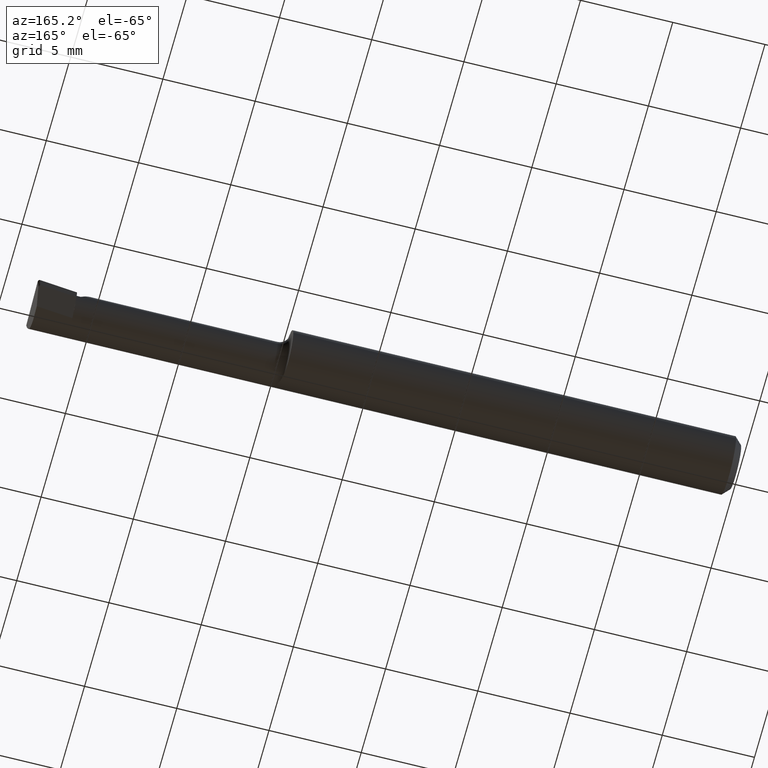
[diagram: clean part render]
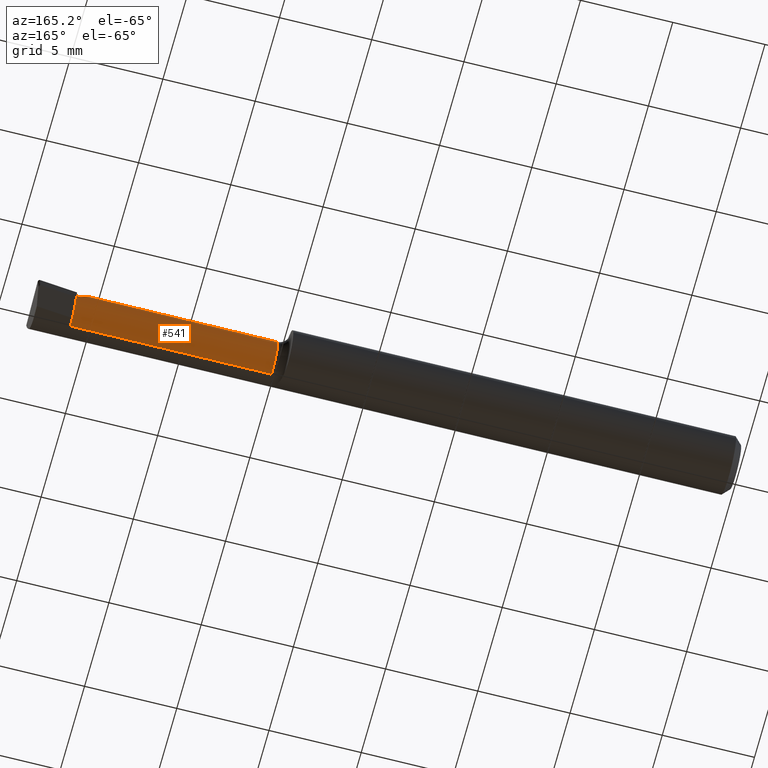
[diagram: same view with one face highlighted and labeled with its STEP entity id]
A machine part, auxiliary view. The second image highlights one B-rep face of the part: STEP entity #541.
In plain terms, the highlighted cylindrical surface (edge-blend (fillet) strip) has radius 1.2205 mm, axis along (-1, -0, -0).
Its self-contained STEP definition (entity closure, byte-faithful):
#14 = CARTESIAN_POINT ( 'NONE',  ( 1.415000000000000036, -0.01839999999999999969, 0.0000000000000000000 ) ) ;
#16 = CARTESIAN_POINT ( 'NONE',  ( 1.415000000000000036, 0.007456147106387241673, -0.04050015008383130860 ) ) ;
#19 = CARTESIAN_POINT ( 'NONE',  ( 1.415000000000000036, -0.01839999999999999969, 0.0000000000000000000 ) ) ;
#25 = CARTESIAN_POINT ( 'NONE',  ( 2.249639673992775738E-32, 0.02964999999999996458, 1.836970198721025250E-16 ) ) ;
#26 = DIRECTION ( 'NONE',  ( 0.0000000000000000000, 0.0000000000000000000, 1.000000000000000000 ) ) ;
#31 = CARTESIAN_POINT ( 'NONE',  ( 1.415000000000000036, -0.01839999999999999969, -0.04804999999999998855 ) ) ;
#36 = CIRCLE ( 'NONE', #620, 0.04805000000000000243 ) ;
#47 = ORIENTED_EDGE ( 'NONE', *, *, #307, .F. ) ;
#54 = CIRCLE ( 'NONE', #584, 0.04805000000000000243 ) ;
#63 = DIRECTION ( 'NONE',  ( 1.000000000000000000, 0.0000000000000000000, 0.0000000000000000000 ) ) ;
#77 = DIRECTION ( 'NONE',  ( -1.000000000000000000, -0.0000000000000000000, -0.0000000000000000000 ) ) ;
#79 = DIRECTION ( 'NONE',  ( 0.0000000000000000000, 0.0000000000000000000, 1.000000000000000000 ) ) ;
#81 = CARTESIAN_POINT ( 'NONE',  ( 1.405000000000000249, 0.02964999999999991601, 1.163414459189982046E-17 ) ) ;
#105 = VECTOR ( 'NONE', #537, 39.37007874015748143 ) ;
#109 = EDGE_CURVE ( 'NONE', #404, #261, #54, .T. ) ;
#111 = ORIENTED_EDGE ( 'NONE', *, *, #641, .T. ) ;
#114 =( BOUNDED_CURVE ( )  B_SPLINE_CURVE ( 3, ( #247, #674, #547, #120 ),
 .UNSPECIFIED., .F., .T. ) 
 B_SPLINE_CURVE_WITH_KNOTS ( ( 4, 4 ),
 ( 0.0000000000000000000, 1.570796326794896558 ),
 .UNSPECIFIED. ) 
 CURVE ( )  GEOMETRIC_REPRESENTATION_ITEM ( )  RATIONAL_B_SPLINE_CURVE ( ( 1.000000000000000000, 0.8047378541243649375, 0.8047378541243649375, 1.000000000000000000 ) ) 
 REPRESENTATION_ITEM ( '' )  );
#120 = CARTESIAN_POINT ( 'NONE',  ( 1.405000000000000249, 0.02964999999999991601, 1.163414459189982046E-17 ) ) ;
#126 = AXIS2_PLACEMENT_3D ( 'NONE', #297, #668, #236 ) ;
#129 = DIRECTION ( 'NONE',  ( -1.000000000000000000, -0.0000000000000000000, -0.0000000000000000000 ) ) ;
#138 = CYLINDRICAL_SURFACE ( 'NONE', #126, 0.04804999999999997468 ) ;
#145 = VERTEX_POINT ( 'NONE', #694 ) ;
#165 = ORIENTED_EDGE ( 'NONE', *, *, #421, .T. ) ;
#174 = EDGE_CURVE ( 'NONE', #468, #472, #213, .T. ) ;
#191 = CIRCLE ( 'NONE', #377, 0.04804999999999997468 ) ;
#213 = LINE ( 'NONE', #531, #105 ) ;
#236 = DIRECTION ( 'NONE',  ( 0.0000000000000000000, 0.0000000000000000000, 1.000000000000000000 ) ) ;
#240 = VERTEX_POINT ( 'NONE', #528 ) ;
#247 = CARTESIAN_POINT ( 'NONE',  ( 1.356949999999999878, -0.01839999999999999969, 0.04804999999999997468 ) ) ;
#261 = VERTEX_POINT ( 'NONE', #31 ) ;
#297 = CARTESIAN_POINT ( 'NONE',  ( 0.0000000000000000000, -0.01839999999999999969, 0.0000000000000000000 ) ) ;
#307 = EDGE_CURVE ( 'NONE', #472, #397, #316, .T. ) ;
#316 = CIRCLE ( 'NONE', #567, 0.04804999999999994692 ) ;
#318 = CARTESIAN_POINT ( 'NONE',  ( 0.0000000000000000000, -0.01839999999999999275, -0.04804999999999997468 ) ) ;
#330 = DIRECTION ( 'NONE',  ( 0.0000000000000000000, 0.0000000000000000000, 1.000000000000000000 ) ) ;
#352 = DIRECTION ( 'NONE',  ( -1.000000000000000000, -0.0000000000000000000, -0.0000000000000000000 ) ) ;
#366 = ORIENTED_EDGE ( 'NONE', *, *, #109, .T. ) ;
#372 = CARTESIAN_POINT ( 'NONE',  ( 1.356949999999999878, -0.01839999999999999969, 0.04804999999999997468 ) ) ;
#375 = LINE ( 'NONE', #318, #569 ) ;
#377 = AXIS2_PLACEMENT_3D ( 'NONE', #14, #63, #330 ) ;
#397 = VERTEX_POINT ( 'NONE', #529 ) ;
#404 = VERTEX_POINT ( 'NONE', #16 ) ;
#409 = ORIENTED_EDGE ( 'NONE', *, *, #622, .F. ) ;
#418 = VECTOR ( 'NONE', #460, 39.37007874015748143 ) ;
#421 = EDGE_CURVE ( 'NONE', #261, #397, #375, .T. ) ;
#460 = DIRECTION ( 'NONE',  ( 1.000000000000000000, 0.0000000000000000000, 0.0000000000000000000 ) ) ;
#464 = CARTESIAN_POINT ( 'NONE',  ( 1.415000000000000036, -0.01839999999999999969, 0.0000000000000000000 ) ) ;
#465 = DIRECTION ( 'NONE',  ( 0.0000000000000000000, 0.0000000000000000000, 1.000000000000000000 ) ) ;
#468 = VERTEX_POINT ( 'NONE', #372 ) ;
#469 = CARTESIAN_POINT ( 'NONE',  ( 0.9850000000000000977, -0.01839999999999999969, 0.0000000000000000000 ) ) ;
#470 = EDGE_CURVE ( 'NONE', #468, #751, #114, .T. ) ;
#472 = VERTEX_POINT ( 'NONE', #779 ) ;
#528 = CARTESIAN_POINT ( 'NONE',  ( 1.415000000000000036, 0.02964999999999999927, 1.836970198721026483E-16 ) ) ;
#529 = CARTESIAN_POINT ( 'NONE',  ( 0.9850000000000000977, -0.01839999999999999275, -0.04804999999999994692 ) ) ;
#531 = CARTESIAN_POINT ( 'NONE',  ( 0.0000000000000000000, -0.01839999999999999969, 0.04804999999999997468 ) ) ;
#537 = DIRECTION ( 'NONE',  ( -1.000000000000000000, -0.0000000000000000000, -0.0000000000000000000 ) ) ;
#541 = ADVANCED_FACE ( 'NONE', ( #743 ), #138, .T. ) ;
#547 = CARTESIAN_POINT ( 'NONE',  ( 1.376852961672026865, 0.02964999999999997499, 0.02814703832797277316 ) ) ;
#567 = AXIS2_PLACEMENT_3D ( 'NONE', #469, #605, #465 ) ;
#569 = VECTOR ( 'NONE', #129, 39.37007874015748143 ) ;
#576 = LINE ( 'NONE', #25, #418 ) ;
#584 = AXIS2_PLACEMENT_3D ( 'NONE', #19, #352, #26 ) ;
#586 = ORIENTED_EDGE ( 'NONE', *, *, #470, .T. ) ;
#605 = DIRECTION ( 'NONE',  ( -1.000000000000000000, -0.0000000000000000000, -0.0000000000000000000 ) ) ;
#620 = AXIS2_PLACEMENT_3D ( 'NONE', #464, #77, #79 ) ;
#622 = EDGE_CURVE ( 'NONE', #404, #145, #191, .T. ) ;
#641 = EDGE_CURVE ( 'NONE', #751, #240, #576, .T. ) ;
#668 = DIRECTION ( 'NONE',  ( -1.000000000000000000, -0.0000000000000000000, -0.0000000000000000000 ) ) ;
#674 = CARTESIAN_POINT ( 'NONE',  ( 1.356949999999999656, 0.009747038327972766536, 0.04804999999999997468 ) ) ;
#694 = CARTESIAN_POINT ( 'NONE',  ( 1.415000000000000036, 0.02286474879319036826, -0.02461753454420024384 ) ) ;
#712 = ORIENTED_EDGE ( 'NONE', *, *, #174, .F. ) ;
#724 = EDGE_LOOP ( 'NONE', ( #366, #165, #47, #712, #586, #111, #752, #409 ) ) ;
#743 = FACE_OUTER_BOUND ( 'NONE', #724, .T. ) ;
#748 = EDGE_CURVE ( 'NONE', #240, #145, #36, .T. ) ;
#751 = VERTEX_POINT ( 'NONE', #81 ) ;
#752 = ORIENTED_EDGE ( 'NONE', *, *, #748, .T. ) ;
#779 = CARTESIAN_POINT ( 'NONE',  ( 0.9850000000000000977, -0.01839999999999999969, 0.04804999999999994692 ) ) ;